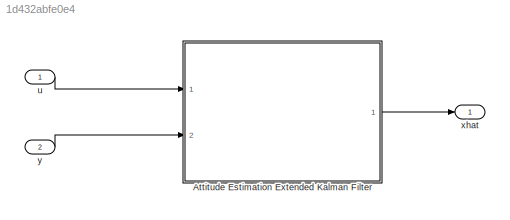
MODEL slx_1d432abfe0e4
KIND model
CONFIG AbsTol = auto
CONFIG EnableMultiTasking = off
CONFIG FixedStep = auto
CONFIG MaxStep = auto
CONFIG MinStep = auto
CONFIG RelTol = 1e-3
CONFIG SampleTimeConstraint = Unconstrained
CONFIG Solver = FixedStepAuto
CONFIG SolverName = FixedStepAuto
CONFIG StartTime = 0.0
CONFIG StopTime = 10.0
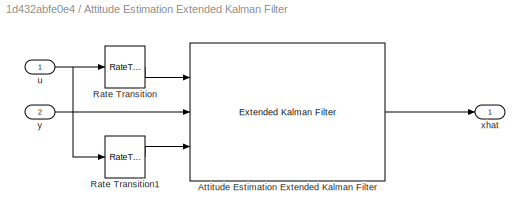
BLOCK [SubSystem] Attitude Estimation Extended Kalman Filter
  Ports = [2, 1]
  RequestExecContextInheritance = off
BLOCK [Reference] Attitude Estimation Extended Kalman Filter/Attitude Estimation Extended Kalman Filter  REF=sharedTrackingLibrary/Extended Kalman Filter
  Ports = [3, 1]
  SourceBlock = sharedTrackingLibrary/Extended Kalman Filter
  SourceProductBaseCode = CT
  SourceProductName = Control System Toolbox
  SourceType = Extended Kalman Filter
BLOCK [RateTransition] Attitude Estimation Extended Kalman Filter/Rate Transition
  OutPortSampleTime = SkywalkerX8.Sensors.EKF.Attitude.StateTransitionSampleTime
BLOCK [RateTransition] Attitude Estimation Extended Kalman Filter/Rate Transition1
  OutPortSampleTime = SkywalkerX8.Sensors.EKF.Attitude.MeasurementSampleTime
BLOCK [Inport] Attitude Estimation Extended Kalman Filter/u
  IconDisplay = Port number
BLOCK [Outport] Attitude Estimation Extended Kalman Filter/xhat
  IconDisplay = Port number
BLOCK [Inport] Attitude Estimation Extended Kalman Filter/y
  IconDisplay = Port number
  Port = 2
BLOCK [Inport] u
  IconDisplay = Port number
  PortDimensions = 4
  SampleTime = SkywalkerX8.Sensors.EKF.Attitude.StateTransitionSampleTime
BLOCK [Outport] xhat
  IconDisplay = Port number
BLOCK [Inport] y
  IconDisplay = Port number
  Port = 2
  PortDimensions = 3
  SampleTime = SkywalkerX8.Sensors.EKF.Attitude.MeasurementSampleTime
LINE Attitude Estimation Extended Kalman Filter/Attitude Estimation Extended Kalman Filter:1 -> Attitude Estimation Extended Kalman Filter/xhat:1
LINE Attitude Estimation Extended Kalman Filter/Rate Transition1:1 -> Attitude Estimation Extended Kalman Filter/Attitude Estimation Extended Kalman Filter:3
LINE Attitude Estimation Extended Kalman Filter/Rate Transition:1 -> Attitude Estimation Extended Kalman Filter/Attitude Estimation Extended Kalman Filter:1
NET Attitude Estimation Extended Kalman Filter/u:1 -> Attitude Estimation Extended Kalman Filter/Rate Transition1:1, Attitude Estimation Extended Kalman Filter/Rate Transition:1
LINE Attitude Estimation Extended Kalman Filter/y:1 -> Attitude Estimation Extended Kalman Filter/Attitude Estimation Extended Kalman Filter:2
LINE Attitude Estimation Extended Kalman Filter:1 -> xhat:1
LINE u:1 -> Attitude Estimation Extended Kalman Filter:1
LINE y:1 -> Attitude Estimation Extended Kalman Filter:2
note: NET lines group one-source signal fan-out (src -> all destinations, sorted); 1:1 wires keep LINE
